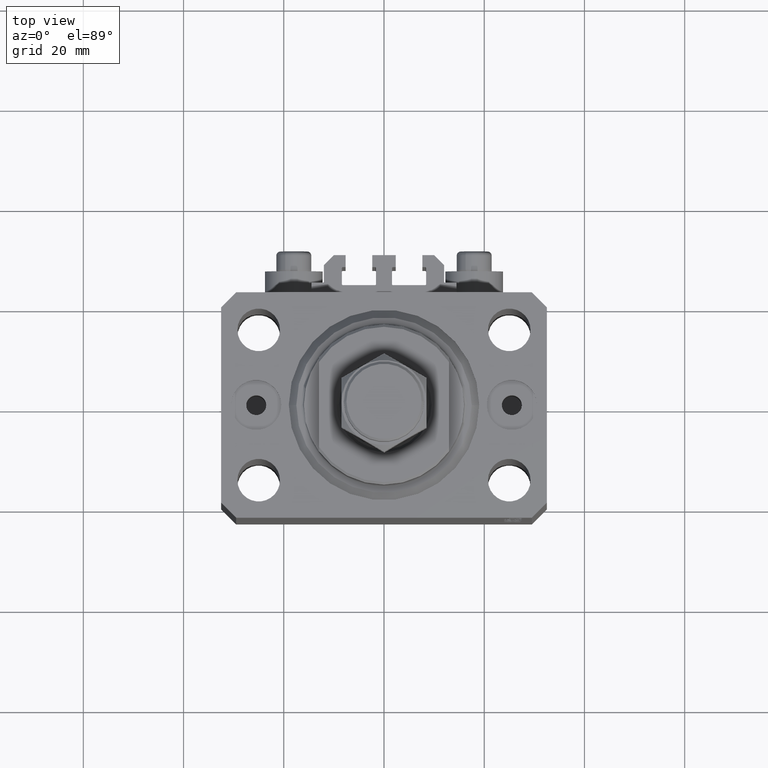
[diagram: clean part render]
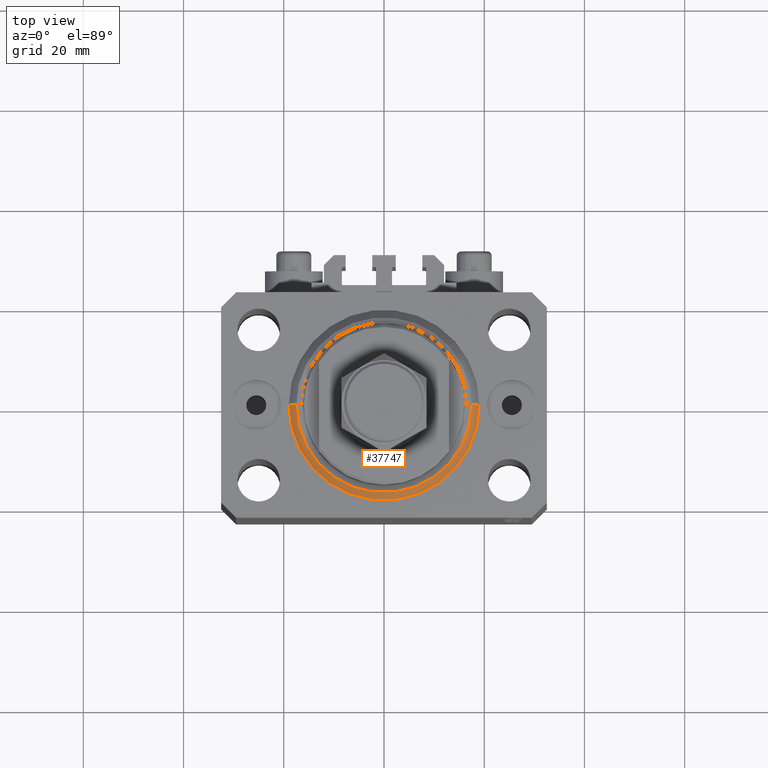
[diagram: same view with one face highlighted and labeled with its STEP entity id]
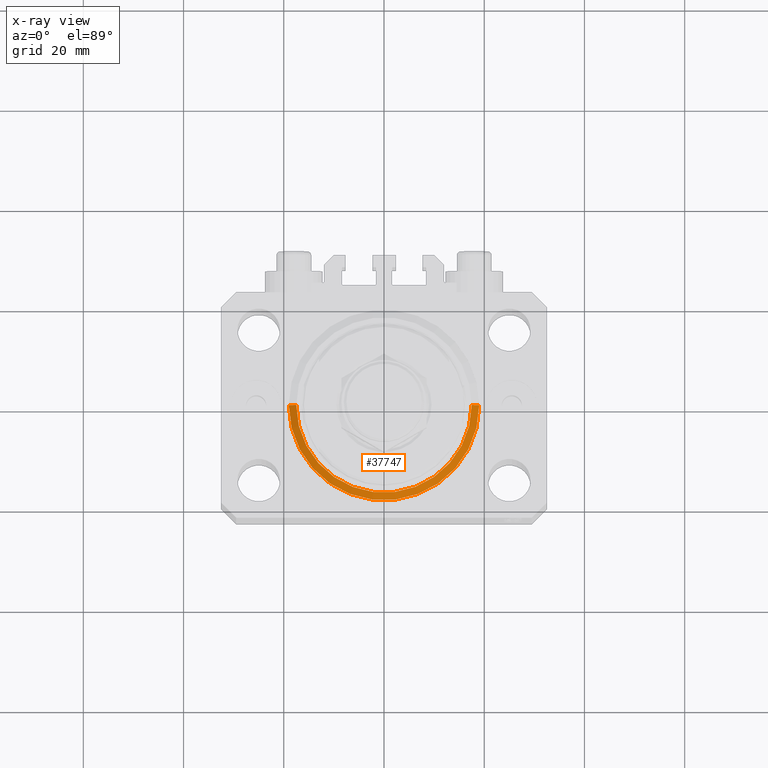
[diagram: x-ray of the same camera — body ghosted, the highlighted face saturated]
A machine part, top view. The second image highlights one B-rep face of the part: STEP entity #37747.
The next image is the same camera in x-ray: the body ghosted, the highlighted face saturated — about 0% of this face is hidden behind the body in this view.
In plain terms, the highlighted conical surface has half-angle 45 deg.
Its self-contained STEP definition (entity closure, byte-faithful):
#150 = CARTESIAN_POINT ( 'NONE',  ( 17.49999999999999289, 0.000000000000000000, 0.000000000000000000 ) ) ;
#1000 = CIRCLE ( 'NONE', #3358, 19.00000000000000000 ) ;
#1446 = DIRECTION ( 'NONE',  ( -0.000000000000000000, -0.000000000000000000, 1.000000000000000000 ) ) ;
#1683 = DIRECTION ( 'NONE',  ( 1.000000000000000000, 0.000000000000000000, 0.000000000000000000 ) ) ;
#2566 = CIRCLE ( 'NONE', #30183, 17.49999999999999289 ) ;
#2694 = CARTESIAN_POINT ( 'NONE',  ( 0.000000000000000000, 0.000000000000000000, 0.000000000000000000 ) ) ;
#3358 = AXIS2_PLACEMENT_3D ( 'NONE', #23552, #42559, #19590 ) ;
#4617 = CARTESIAN_POINT ( 'NONE',  ( 19.00000000000000000, 0.000000000000000000, 1.500000000000004885 ) ) ;
#5522 = AXIS2_PLACEMENT_3D ( 'NONE', #23193, #1446, #1683 ) ;
#6217 = DIRECTION ( 'NONE',  ( -0.7071067811865483499, 8.659560562354943952E-17, 0.7071067811865467956 ) ) ;
#7546 = VERTEX_POINT ( 'NONE', #14673 ) ;
#13407 = VERTEX_POINT ( 'NONE', #150 ) ;
#14054 = DIRECTION ( 'NONE',  ( -0.000000000000000000, -0.000000000000000000, -1.000000000000000000 ) ) ;
#14673 = CARTESIAN_POINT ( 'NONE',  ( 19.00000000000000000, 2.326828918379970970E-15, 1.500000000000004885 ) ) ;
#15488 = EDGE_CURVE ( 'NONE', #43712, #7546, #1000, .T. ) ;
#18217 = EDGE_CURVE ( 'NONE', #29689, #43712, #43276, .T. ) ;
#19590 = DIRECTION ( 'NONE',  ( 1.000000000000000000, 0.000000000000000000, 0.000000000000000000 ) ) ;
#19719 = FACE_OUTER_BOUND ( 'NONE', #20800, .T. ) ;
#20800 = EDGE_LOOP ( 'NONE', ( #31812, #23858, #46605, #27039 ) ) ;
#22582 = CARTESIAN_POINT ( 'NONE',  ( -17.49999999999999289, 2.234980408443919215E-15, 0.000000000000000000 ) ) ;
#22879 = CONICAL_SURFACE ( 'NONE', #5522, 19.00000000000000000, 0.7853981633974492782 ) ;
#23193 = CARTESIAN_POINT ( 'NONE',  ( 0.000000000000000000, 0.000000000000000000, 1.500000000000004885 ) ) ;
#23552 = CARTESIAN_POINT ( 'NONE',  ( 0.000000000000000000, 0.000000000000000000, 1.500000000000004885 ) ) ;
#23858 = ORIENTED_EDGE ( 'NONE', *, *, #43681, .F. ) ;
#26623 = LINE ( 'NONE', #4617, #39413 ) ;
#27039 = ORIENTED_EDGE ( 'NONE', *, *, #15488, .F. ) ;
#28458 = CARTESIAN_POINT ( 'NONE',  ( -19.00000000000000000, 2.326828918379970970E-15, 1.500000000000004885 ) ) ;
#28886 = DIRECTION ( 'NONE',  ( 1.000000000000000000, 0.000000000000000000, 0.000000000000000000 ) ) ;
#29689 = VERTEX_POINT ( 'NONE', #22582 ) ;
#30183 = AXIS2_PLACEMENT_3D ( 'NONE', #2694, #14054, #28886 ) ;
#31812 = ORIENTED_EDGE ( 'NONE', *, *, #18217, .F. ) ;
#37064 = EDGE_CURVE ( 'NONE', #13407, #7546, #26623, .T. ) ;
#37747 = ADVANCED_FACE ( 'NONE', ( #19719 ), #22879, .T. ) ;
#39413 = VECTOR ( 'NONE', #41684, 1000.000000000000000 ) ;
#41684 = DIRECTION ( 'NONE',  ( 0.7071067811865483499, 0.000000000000000000, 0.7071067811865467956 ) ) ;
#42559 = DIRECTION ( 'NONE',  ( -0.000000000000000000, -0.000000000000000000, 1.000000000000000000 ) ) ;
#43276 = LINE ( 'NONE', #28458, #43647 ) ;
#43647 = VECTOR ( 'NONE', #6217, 1000.000000000000000 ) ;
#43681 = EDGE_CURVE ( 'NONE', #13407, #29689, #2566, .T. ) ;
#43712 = VERTEX_POINT ( 'NONE', #48383 ) ;
#46605 = ORIENTED_EDGE ( 'NONE', *, *, #37064, .T. ) ;
#48383 = CARTESIAN_POINT ( 'NONE',  ( -19.00000000000000000, 0.000000000000000000, 1.500000000000004885 ) ) ;